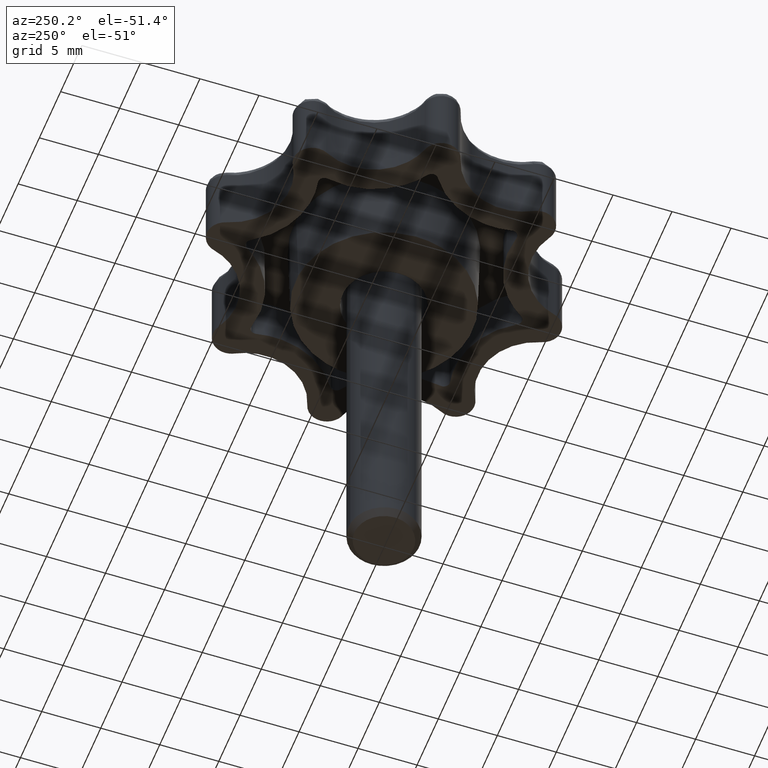
[diagram: clean part render]
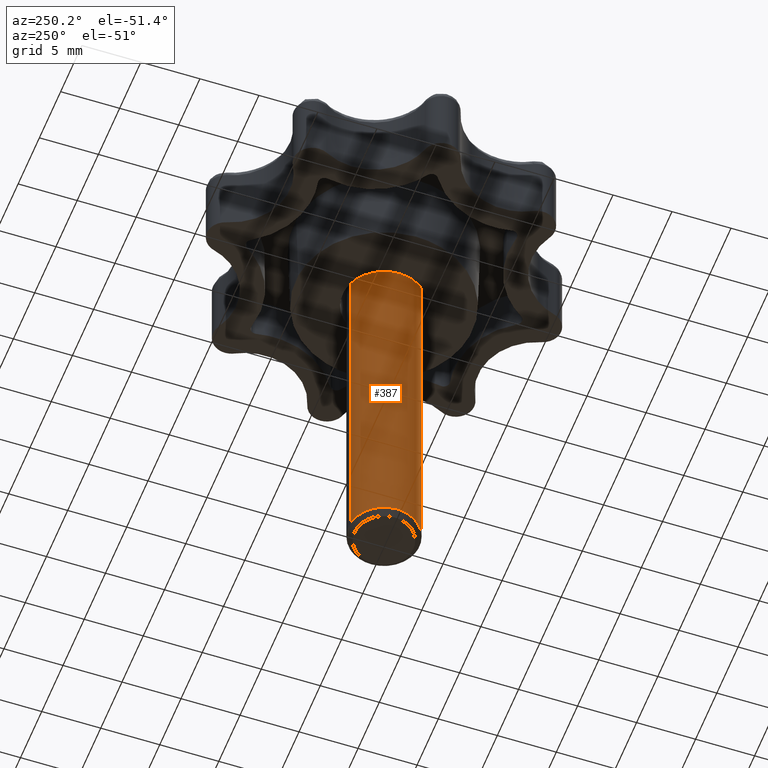
[diagram: same view with one face highlighted and labeled with its STEP entity id]
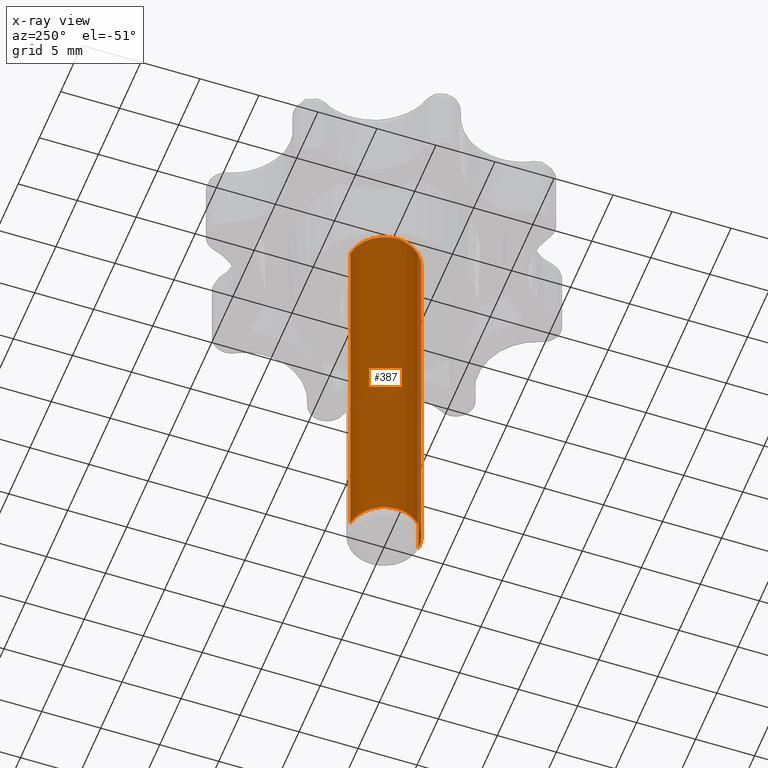
[diagram: x-ray of the same camera — body ghosted, the highlighted face saturated]
A machine part, auxiliary view. The second image highlights one B-rep face of the part: STEP entity #387.
The next image is the same camera in x-ray: the body ghosted, the highlighted face saturated — about 1% of this face is hidden behind the body in this view.
In plain terms, the highlighted face is a freeform B-spline surface patch.
Its self-contained STEP definition (entity closure, byte-faithful):
#66=CARTESIAN_POINT('',(-0.354102734226556,2.979028575494581,-29.500000000000000));
#67=VERTEX_POINT('',#66);
#133=CARTESIAN_POINT('',(0.183145618646794,-2.994404395263018,-29.500000000000000));
#134=VERTEX_POINT('',#133);
#148=CARTESIAN_POINT('',(-3.0,0.0,-29.500000000000000));
#149=VERTEX_POINT('',#148);
#150=CARTESIAN_POINT('',(0.183145618646794,-2.994404395263018,-29.500000000000004));
#151=CARTESIAN_POINT('',(0.091658289938109,-3.000000000000000,-29.500000000000004));
#152=CARTESIAN_POINT('',(0.0,-3.0,-29.500000000000000));
#153=CARTESIAN_POINT('',(-3.0,-3.0,-29.499999999999996));
#154=CARTESIAN_POINT('',(-3.0,0.0,-29.500000000000000));
#162=(BOUNDED_CURVE()B_SPLINE_CURVE(2,(#150,#151,#152,#153,#154),.UNSPECIFIED.,.F.,.U.)B_SPLINE_CURVE_WITH_KNOTS((3,2,3),(0.739332962237102,0.750000000000000,1.0),.UNSPECIFIED.)CURVE()GEOMETRIC_REPRESENTATION_ITEM()RATIONAL_B_SPLINE_CURVE((0.976072041662773,0.987502787897681,1.0,0.707106781186548,1.0))REPRESENTATION_ITEM(''));
#163=EDGE_CURVE('',#134,#149,#162,.T.);
#165=CARTESIAN_POINT('',(-3.0,0.0,-29.500000000000000));
#166=CARTESIAN_POINT('',(-3.000000000000001,2.664523523349019,-29.500000000000004));
#167=CARTESIAN_POINT('',(-0.354102734226556,2.979028575494581,-29.499999999999996));
#175=(BOUNDED_CURVE()B_SPLINE_CURVE(2,(#165,#166,#167),.UNSPECIFIED.,.F.,.U.)B_SPLINE_CURVE_WITH_KNOTS((3,3),(0.0,0.229562470082707),.UNSPECIFIED.)CURVE()GEOMETRIC_REPRESENTATION_ITEM()RATIONAL_B_SPLINE_CURVE((1.0,0.731050836874837,0.956026747459187))REPRESENTATION_ITEM(''));
#176=EDGE_CURVE('',#149,#67,#175,.T.);
#283=CARTESIAN_POINT('',(-0.354102734226556,2.979028575494581,5.0));
#284=VERTEX_POINT('',#283);
#285=CARTESIAN_POINT('',(-0.354102734226556,2.979028575494581,5.0));
#286=CARTESIAN_POINT('',(-0.354102734226556,2.979028575494581,-29.500000000000000));
#287=QUASI_UNIFORM_CURVE('',1,(#285,#286),.UNSPECIFIED.,.F.,.U.);
#288=EDGE_CURVE('',#284,#67,#287,.T.);
#307=CARTESIAN_POINT('',(0.183145618646795,-2.994404395263018,4.999999999999999));
#308=VERTEX_POINT('',#307);
#322=CARTESIAN_POINT('',(0.183145618646795,-2.994404395263018,4.999999999999999));
#323=CARTESIAN_POINT('',(0.183145618646794,-2.994404395263018,-29.500000000000000));
#324=QUASI_UNIFORM_CURVE('',1,(#322,#323),.UNSPECIFIED.,.F.,.U.);
#325=EDGE_CURVE('',#308,#134,#324,.T.);
#333=CARTESIAN_POINT('',(0.183145618604571,-2.994404395265600,5.862500000000002));
#334=CARTESIAN_POINT('',(-2.811258776661029,-3.177550013870171,5.862500000000002));
#335=CARTESIAN_POINT('',(-2.994404395265600,-0.183145618604571,5.862500000000002));
#336=CARTESIAN_POINT('',(-3.167358590197582,2.644630472518504,5.862500000000002));
#337=CARTESIAN_POINT('',(-0.354102703970275,2.979028579091000,5.862500000000002));
#338=CARTESIAN_POINT('',(0.183145618604571,-2.994404395265600,-30.384062499999999));
#339=CARTESIAN_POINT('',(-2.811258776661029,-3.177550013870171,-30.384062499999992));
#340=CARTESIAN_POINT('',(-2.994404395265600,-0.183145618604571,-30.384062499999999));
#341=CARTESIAN_POINT('',(-3.167358590197582,2.644630472518504,-30.384062499999999));
#342=CARTESIAN_POINT('',(-0.354102703970275,2.979028579091000,-30.384062500000010));
#350=(BOUNDED_SURFACE()B_SPLINE_SURFACE(2,1,((#333,#338),(#334,#339),(#335,#340),(#336,#341),(#337,#342)),.UNSPECIFIED.,.F.,.F.,.U.)B_SPLINE_SURFACE_WITH_KNOTS((3,2,3),(2,2),(0.0,4.970562748477139,9.742302987015194),(0.0,36.246562500000010),.UNSPECIFIED.)GEOMETRIC_REPRESENTATION_ITEM()RATIONAL_B_SPLINE_SURFACE(((1.0,1.0),(0.707106781186548,0.707106781186548),(1.0,1.0),(0.718822509939086,0.718822509939086),(0.977505800795127,0.977505800795127)))REPRESENTATION_ITEM('')SURFACE());
#351=ORIENTED_EDGE('',*,*,#176,.F.);
#352=ORIENTED_EDGE('',*,*,#163,.F.);
#353=ORIENTED_EDGE('',*,*,#325,.F.);
#354=CARTESIAN_POINT('',(-3.0,0.0,5.0));
#355=VERTEX_POINT('',#354);
#356=CARTESIAN_POINT('',(0.183145618646795,-2.994404395263018,4.999999999999999));
#357=CARTESIAN_POINT('',(0.091658289938109,-3.000000000000000,5.0));
#358=CARTESIAN_POINT('',(0.0,-3.0,5.0));
#359=CARTESIAN_POINT('',(-3.0,-3.0,5.000000000000001));
#360=CARTESIAN_POINT('',(-3.0,0.0,5.0));
#368=(BOUNDED_CURVE()B_SPLINE_CURVE(2,(#356,#357,#358,#359,#360),.UNSPECIFIED.,.F.,.U.)B_SPLINE_CURVE_WITH_KNOTS((3,2,3),(0.739332962237102,0.750000000000000,1.0),.UNSPECIFIED.)CURVE()GEOMETRIC_REPRESENTATION_ITEM()RATIONAL_B_SPLINE_CURVE((0.976072041662773,0.987502787897681,1.0,0.707106781186548,1.0))REPRESENTATION_ITEM(''));
#369=EDGE_CURVE('',#308,#355,#368,.T.);
#370=ORIENTED_EDGE('',*,*,#369,.T.);
#371=CARTESIAN_POINT('',(-3.0,0.0,5.0));
#372=CARTESIAN_POINT('',(-3.000000000000001,2.664523523349019,5.000000000000001));
#373=CARTESIAN_POINT('',(-0.354102734226556,2.979028575494581,5.0));
#381=(BOUNDED_CURVE()B_SPLINE_CURVE(2,(#371,#372,#373),.UNSPECIFIED.,.F.,.U.)B_SPLINE_CURVE_WITH_KNOTS((3,3),(0.0,0.229562470082707),.UNSPECIFIED.)CURVE()GEOMETRIC_REPRESENTATION_ITEM()RATIONAL_B_SPLINE_CURVE((1.0,0.731050836874837,0.956026747459187))REPRESENTATION_ITEM(''));
#382=EDGE_CURVE('',#355,#284,#381,.T.);
#383=ORIENTED_EDGE('',*,*,#382,.T.);
#384=ORIENTED_EDGE('',*,*,#288,.T.);
#385=EDGE_LOOP('',(#351,#352,#353,#370,#383,#384));
#386=FACE_OUTER_BOUND('',#385,.T.);
#387=ADVANCED_FACE('',(#386),#350,.T.);